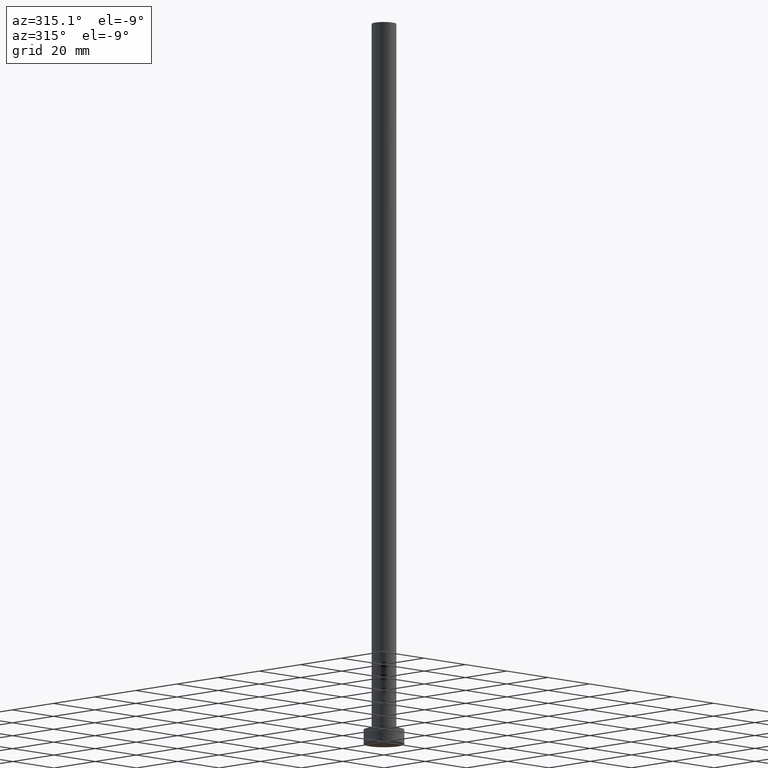
[diagram: clean part render]
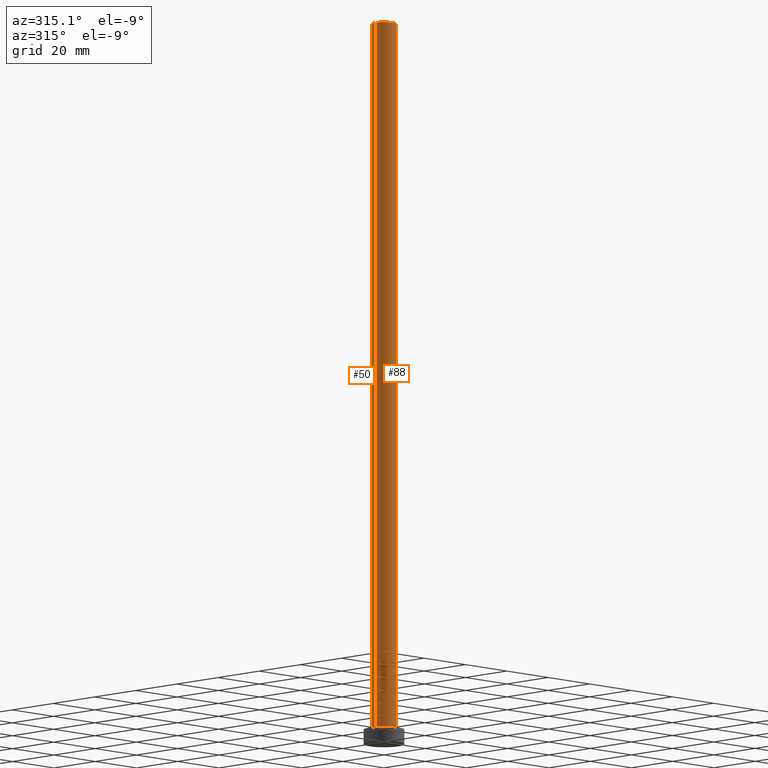
[diagram: same view with one multi-face feature highlighted, each face labeled with its STEP entity id]
A machine part, auxiliary view. The highlighted faces form ONE feature: a constant-radius fillet chain: 2 tangent blend faces with common blend radius 4.25 mm. The faces share edges in the B-rep.
Their STEP definitions:
[1] entity #50 (Cylinder):
#2 = CYLINDRICAL_SURFACE ( 'NONE', #121, 4.250000000000000000 ) ;
#3 = AXIS2_PLACEMENT_3D ( 'NONE', #4, #236, #79 ) ;
#4 = CARTESIAN_POINT ( 'NONE',  ( 0.000000000000000000, 0.000000000000000000, 5.000000000000000000 ) ) ;
#12 = CARTESIAN_POINT ( 'NONE',  ( 4.250000000000000000, 5.204748896376250699E-16, 250.0000000000000000 ) ) ;
#16 = DIRECTION ( 'NONE',  ( 0.000000000000000000, 0.000000000000000000, 1.000000000000000000 ) ) ;
#50 = ADVANCED_FACE ( 'NONE', ( #105 ), #2, .T. ) ;
#53 = CARTESIAN_POINT ( 'NONE',  ( 4.250000000000000000, 5.204748896376250699E-16, 5.000000000000000000 ) ) ;
#65 = EDGE_CURVE ( 'NONE', #240, #243, #81, .T. ) ;
#66 = VECTOR ( 'NONE', #139, 1000.000000000000000 ) ;
#69 = CIRCLE ( 'NONE', #237, 4.250000000000000000 ) ;
#79 = DIRECTION ( 'NONE',  ( 1.000000000000000000, 0.000000000000000000, 0.000000000000000000 ) ) ;
#81 = LINE ( 'NONE', #12, #222 ) ;
#93 = EDGE_CURVE ( 'NONE', #240, #229, #69, .T. ) ;
#98 = ORIENTED_EDGE ( 'NONE', *, *, #93, .F. ) ;
#99 = LINE ( 'NONE', #198, #66 ) ;
#100 = DIRECTION ( 'NONE',  ( 1.000000000000000000, 0.000000000000000000, 0.000000000000000000 ) ) ;
#105 = FACE_OUTER_BOUND ( 'NONE', #208, .T. ) ;
#114 = VERTEX_POINT ( 'NONE', #162 ) ;
#121 = AXIS2_PLACEMENT_3D ( 'NONE', #187, #225, #133 ) ;
#133 = DIRECTION ( 'NONE',  ( -1.000000000000000000, 0.000000000000000000, 0.000000000000000000 ) ) ;
#139 = DIRECTION ( 'NONE',  ( -0.000000000000000000, -0.000000000000000000, -1.000000000000000000 ) ) ;
#141 = ORIENTED_EDGE ( 'NONE', *, *, #205, .F. ) ;
#146 = ORIENTED_EDGE ( 'NONE', *, *, #154, .T. ) ;
#150 = ORIENTED_EDGE ( 'NONE', *, *, #65, .T. ) ;
#154 = EDGE_CURVE ( 'NONE', #243, #114, #184, .T. ) ;
#162 = CARTESIAN_POINT ( 'NONE',  ( -4.250000000000000000, 0.000000000000000000, 5.000000000000000000 ) ) ;
#173 = DIRECTION ( 'NONE',  ( -0.000000000000000000, -0.000000000000000000, -1.000000000000000000 ) ) ;
#184 = CIRCLE ( 'NONE', #3, 4.250000000000000000 ) ;
#187 = CARTESIAN_POINT ( 'NONE',  ( 0.000000000000000000, 0.000000000000000000, 250.0000000000000000 ) ) ;
#193 = CARTESIAN_POINT ( 'NONE',  ( 0.000000000000000000, 0.000000000000000000, 250.0000000000000000 ) ) ;
#194 = CARTESIAN_POINT ( 'NONE',  ( -4.250000000000000000, 0.000000000000000000, 250.0000000000000000 ) ) ;
#198 = CARTESIAN_POINT ( 'NONE',  ( -4.250000000000000000, 0.000000000000000000, 250.0000000000000000 ) ) ;
#205 = EDGE_CURVE ( 'NONE', #229, #114, #99, .T. ) ;
#208 = EDGE_LOOP ( 'NONE', ( #98, #150, #146, #141 ) ) ;
#222 = VECTOR ( 'NONE', #173, 1000.000000000000000 ) ;
#225 = DIRECTION ( 'NONE',  ( -0.000000000000000000, -0.000000000000000000, -1.000000000000000000 ) ) ;
#229 = VERTEX_POINT ( 'NONE', #194 ) ;
#236 = DIRECTION ( 'NONE',  ( 0.000000000000000000, 0.000000000000000000, 1.000000000000000000 ) ) ;
#237 = AXIS2_PLACEMENT_3D ( 'NONE', #193, #16, #100 ) ;
#240 = VERTEX_POINT ( 'NONE', #248 ) ;
#243 = VERTEX_POINT ( 'NONE', #53 ) ;
#248 = CARTESIAN_POINT ( 'NONE',  ( 4.250000000000000000, 5.204748896376250699E-16, 250.0000000000000000 ) ) ;
[2] entity #88 (Cylinder):
#8 = ORIENTED_EDGE ( 'NONE', *, *, #145, .T. ) ;
#9 = AXIS2_PLACEMENT_3D ( 'NONE', #67, #235, #34 ) ;
#12 = CARTESIAN_POINT ( 'NONE',  ( 4.250000000000000000, 5.204748896376250699E-16, 250.0000000000000000 ) ) ;
#13 = EDGE_LOOP ( 'NONE', ( #58, #219, #112, #8 ) ) ;
#24 = DIRECTION ( 'NONE',  ( 1.000000000000000000, 0.000000000000000000, 0.000000000000000000 ) ) ;
#30 = EDGE_CURVE ( 'NONE', #229, #240, #56, .T. ) ;
#34 = DIRECTION ( 'NONE',  ( 1.000000000000000000, 0.000000000000000000, 0.000000000000000000 ) ) ;
#53 = CARTESIAN_POINT ( 'NONE',  ( 4.250000000000000000, 5.204748896376250699E-16, 5.000000000000000000 ) ) ;
#55 = DIRECTION ( 'NONE',  ( -0.000000000000000000, -0.000000000000000000, -1.000000000000000000 ) ) ;
#56 = CIRCLE ( 'NONE', #61, 4.250000000000000000 ) ;
#58 = ORIENTED_EDGE ( 'NONE', *, *, #65, .F. ) ;
#61 = AXIS2_PLACEMENT_3D ( 'NONE', #251, #116, #24 ) ;
#65 = EDGE_CURVE ( 'NONE', #240, #243, #81, .T. ) ;
#66 = VECTOR ( 'NONE', #139, 1000.000000000000000 ) ;
#67 = CARTESIAN_POINT ( 'NONE',  ( 0.000000000000000000, 0.000000000000000000, 5.000000000000000000 ) ) ;
#81 = LINE ( 'NONE', #12, #222 ) ;
#88 = ADVANCED_FACE ( 'NONE', ( #171 ), #152, .T. ) ;
#99 = LINE ( 'NONE', #198, #66 ) ;
#112 = ORIENTED_EDGE ( 'NONE', *, *, #205, .T. ) ;
#114 = VERTEX_POINT ( 'NONE', #162 ) ;
#116 = DIRECTION ( 'NONE',  ( 0.000000000000000000, 0.000000000000000000, 1.000000000000000000 ) ) ;
#139 = DIRECTION ( 'NONE',  ( -0.000000000000000000, -0.000000000000000000, -1.000000000000000000 ) ) ;
#145 = EDGE_CURVE ( 'NONE', #114, #243, #163, .T. ) ;
#148 = CARTESIAN_POINT ( 'NONE',  ( 0.000000000000000000, 0.000000000000000000, 250.0000000000000000 ) ) ;
#152 = CYLINDRICAL_SURFACE ( 'NONE', #211, 4.250000000000000000 ) ;
#162 = CARTESIAN_POINT ( 'NONE',  ( -4.250000000000000000, 0.000000000000000000, 5.000000000000000000 ) ) ;
#163 = CIRCLE ( 'NONE', #9, 4.250000000000000000 ) ;
#171 = FACE_OUTER_BOUND ( 'NONE', #13, .T. ) ;
#173 = DIRECTION ( 'NONE',  ( -0.000000000000000000, -0.000000000000000000, -1.000000000000000000 ) ) ;
#194 = CARTESIAN_POINT ( 'NONE',  ( -4.250000000000000000, 0.000000000000000000, 250.0000000000000000 ) ) ;
#198 = CARTESIAN_POINT ( 'NONE',  ( -4.250000000000000000, 0.000000000000000000, 250.0000000000000000 ) ) ;
#205 = EDGE_CURVE ( 'NONE', #229, #114, #99, .T. ) ;
#211 = AXIS2_PLACEMENT_3D ( 'NONE', #148, #55, #214 ) ;
#214 = DIRECTION ( 'NONE',  ( -1.000000000000000000, 0.000000000000000000, 0.000000000000000000 ) ) ;
#219 = ORIENTED_EDGE ( 'NONE', *, *, #30, .F. ) ;
#222 = VECTOR ( 'NONE', #173, 1000.000000000000000 ) ;
#229 = VERTEX_POINT ( 'NONE', #194 ) ;
#235 = DIRECTION ( 'NONE',  ( 0.000000000000000000, 0.000000000000000000, 1.000000000000000000 ) ) ;
#240 = VERTEX_POINT ( 'NONE', #248 ) ;
#243 = VERTEX_POINT ( 'NONE', #53 ) ;
#248 = CARTESIAN_POINT ( 'NONE',  ( 4.250000000000000000, 5.204748896376250699E-16, 250.0000000000000000 ) ) ;
#251 = CARTESIAN_POINT ( 'NONE',  ( 0.000000000000000000, 0.000000000000000000, 250.0000000000000000 ) ) ;